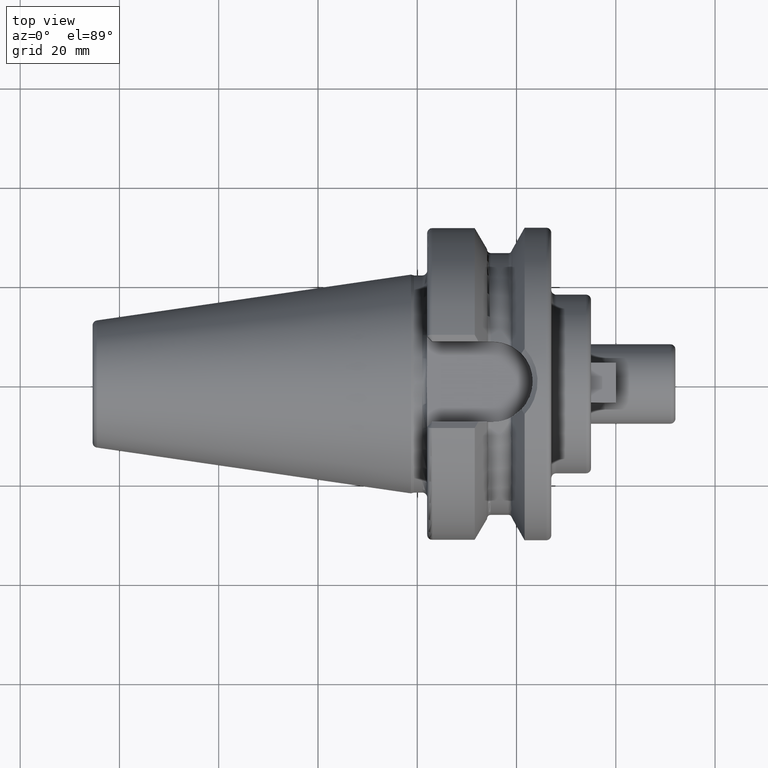
[diagram: clean part render]
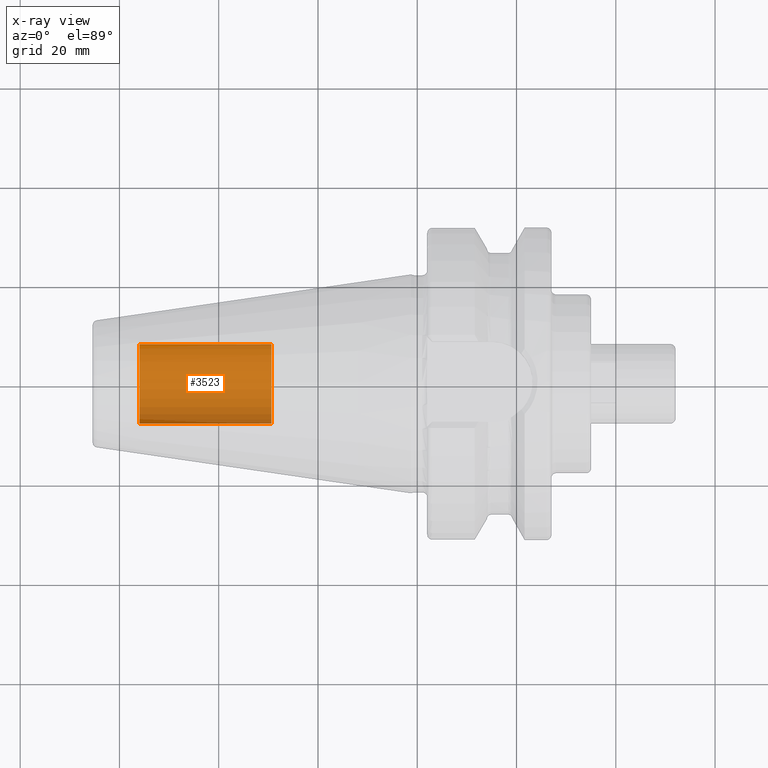
[diagram: x-ray — body ghosted, one internal face saturated and labeled with its STEP entity id]
A machine part, top view, then the same camera in x-ray: the body is ghosted and one INTERNAL B-rep face — a face not visible from any outside direction — is saturated and labeled: STEP entity #3523.
In plain terms, the highlighted cylindrical surface (partial cylindrical patch) has radius 8.0028 mm, axis along (1, 0, 0).
Its self-contained STEP definition (entity closure, byte-faithful):
#3458=CARTESIAN_POINT('',(-5.595E1,0.E0,0.E0));
#3459=DIRECTION('',(-1.E0,0.E0,0.E0));
#3460=DIRECTION('',(0.E0,1.E0,0.E0));
#3461=AXIS2_PLACEMENT_3D('',#3458,#3459,#3460);
#3463=DIRECTION('',(1.E0,0.E0,0.E0));
#3464=VECTOR('',#3463,2.655E1);
#3465=CARTESIAN_POINT('',(-5.595E1,-8.00275E0,0.E0));
#3466=LINE('',#3465,#3464);
#3472=DIRECTION('',(1.E0,0.E0,0.E0));
#3473=VECTOR('',#3472,2.655E1);
#3474=CARTESIAN_POINT('',(-5.595E1,8.00275E0,0.E0));
#3475=LINE('',#3474,#3473);
#3481=CARTESIAN_POINT('',(-2.94E1,0.E0,0.E0));
#3482=DIRECTION('',(1.E0,0.E0,0.E0));
#3483=DIRECTION('',(0.E0,-1.E0,0.E0));
#3484=AXIS2_PLACEMENT_3D('',#3481,#3482,#3483);
#3496=CARTESIAN_POINT('',(-5.595E1,8.00275E0,0.E0));
#3497=CARTESIAN_POINT('',(-5.595E1,-8.00275E0,0.E0));
#3498=VERTEX_POINT('',#3496);
#3499=VERTEX_POINT('',#3497);
#3500=CARTESIAN_POINT('',(-2.94E1,8.00275E0,0.E0));
#3501=CARTESIAN_POINT('',(-2.94E1,-8.00275E0,0.E0));
#3502=VERTEX_POINT('',#3500);
#3503=VERTEX_POINT('',#3501);
#3508=CARTESIAN_POINT('',(-5.595E1,0.E0,0.E0));
#3509=DIRECTION('',(1.E0,0.E0,0.E0));
#3510=DIRECTION('',(0.E0,1.E0,0.E0));
#3511=AXIS2_PLACEMENT_3D('',#3508,#3509,#3510);
#3512=CYLINDRICAL_SURFACE('',#3511,8.00275E0);
#3514=ORIENTED_EDGE('',*,*,#3513,.T.);
#3516=ORIENTED_EDGE('',*,*,#3515,.T.);
#3518=ORIENTED_EDGE('',*,*,#3517,.T.);
#3520=ORIENTED_EDGE('',*,*,#3519,.F.);
#3521=EDGE_LOOP('',(#3514,#3516,#3518,#3520));
#3522=FACE_OUTER_BOUND('',#3521,.F.);
#3523=ADVANCED_FACE('',(#3522),#3512,.T.);
#3462=CIRCLE('',#3461,8.00275E0);
#3485=CIRCLE('',#3484,8.00275E0);
#3513=EDGE_CURVE('',#3498,#3499,#3462,.T.);
#3515=EDGE_CURVE('',#3499,#3503,#3466,.T.);
#3517=EDGE_CURVE('',#3503,#3502,#3485,.T.);
#3519=EDGE_CURVE('',#3498,#3502,#3475,.T.);